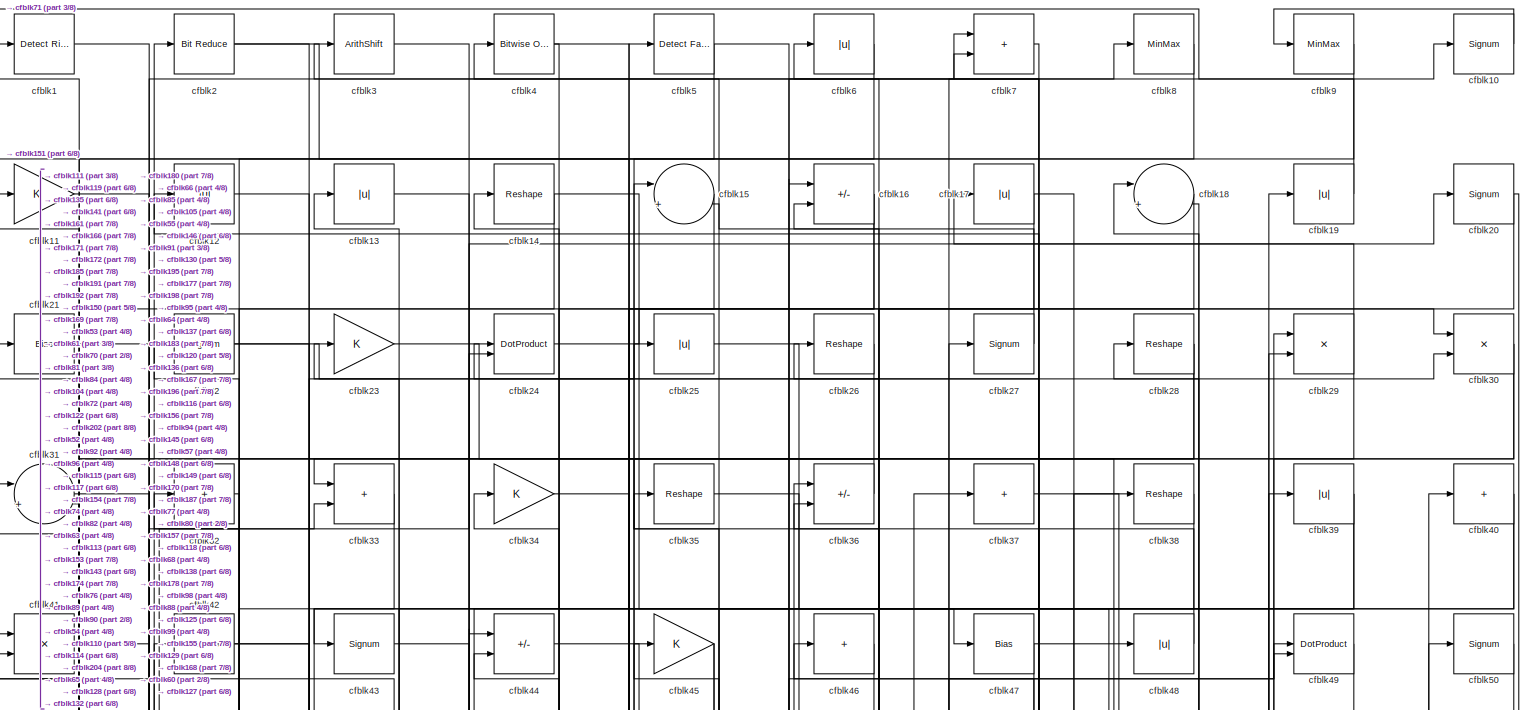
[diagram: root canvas - part 1/8, full width, top band]
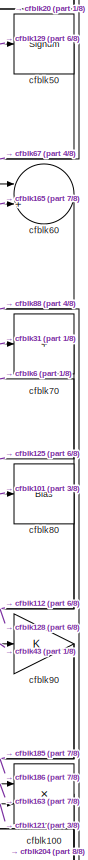
[diagram: root canvas - part 2/8, middle right region]
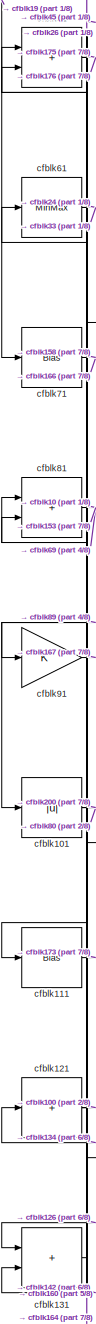
[diagram: root canvas - part 3/8, middle left region]
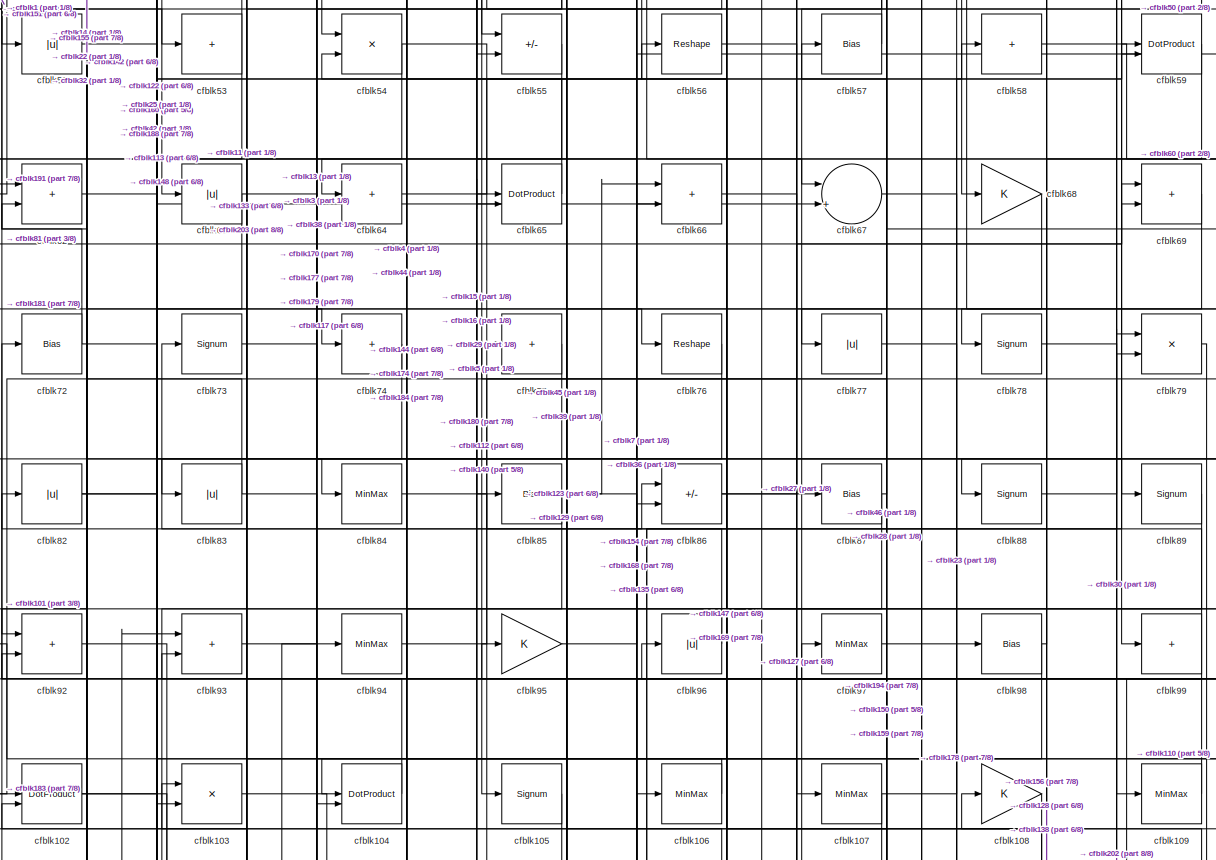
[diagram: root canvas - part 4/8, full width, middle band]
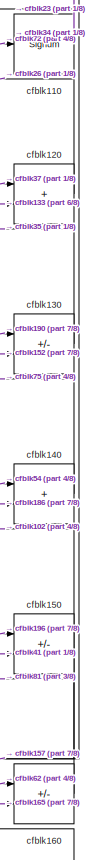
[diagram: root canvas - part 5/8, middle right region]
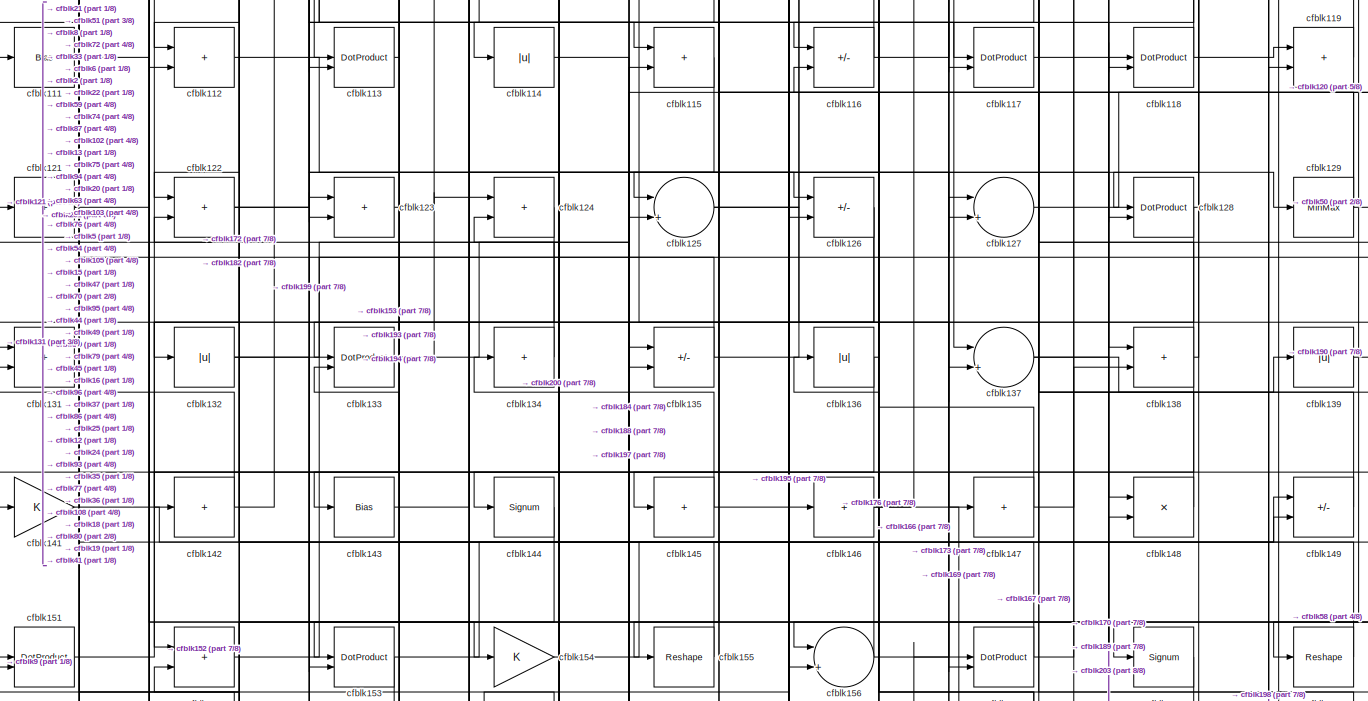
[diagram: root canvas - part 6/8, full width, middle band]
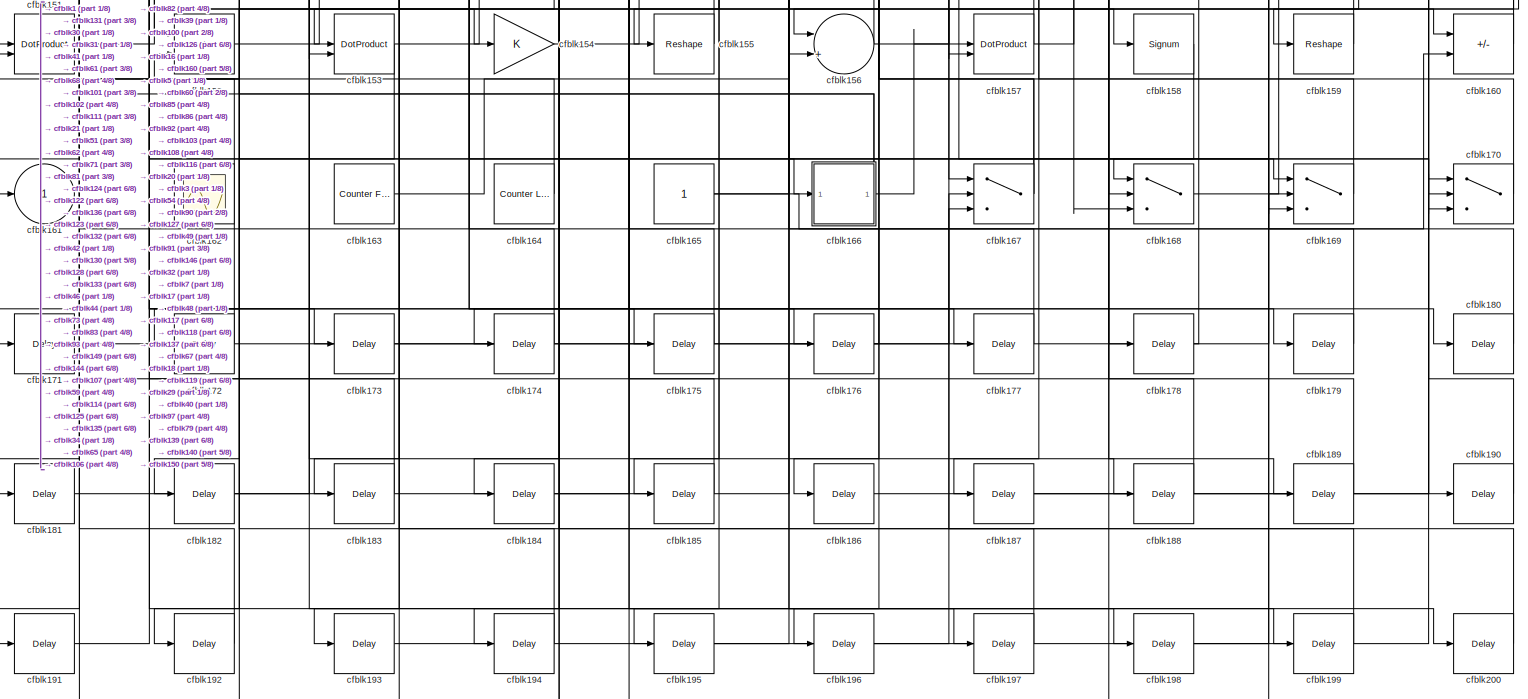
[diagram: root canvas - part 7/8, full width, bottom band]
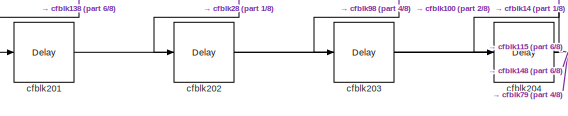
[diagram: root canvas - part 8/8, bottom left region]
MODEL slx_e0bf847c7317
KIND model
CONFIG AbsTol = auto
CONFIG EnableMultiTasking = off
CONFIG FixedStep = auto
CONFIG MaxStep = auto
CONFIG MinStep = auto
CONFIG RelTol = 1e-3
CONFIG SampleTimeConstraint = Unconstrained
CONFIG SolverName = VariableStepAuto
CONFIG StartTime = 0.0
CONFIG StopTime = 10.0
BLOCK [Reference] cfblk1  REF=hdlsllib/Logic and Bit
Operations/Detect Rise
Nonnegative
  SourceBlock = hdlsllib/Logic and Bit\nOperations/Detect Rise\nNonnegative
  SourceType = Detect Rise Nonnegative
BLOCK [Signum] cfblk10
BLOCK [Product] cfblk100
  Inputs = */
  RndMeth = Zero
  SaturateOnIntegerOverflow = on
BLOCK [Abs] cfblk101
  SaturateOnIntegerOverflow = off
BLOCK [DotProduct] cfblk102
  OutDataTypeStr = Inherit: Inherit via internal rule
BLOCK [Product] cfblk103
  Inputs = */
  RndMeth = Zero
  SaturateOnIntegerOverflow = on
BLOCK [DotProduct] cfblk104
  OutDataTypeStr = Inherit: Inherit via internal rule
BLOCK [Signum] cfblk105
BLOCK [MinMax] cfblk106
BLOCK [MinMax] cfblk107
BLOCK [Gain] cfblk108
BLOCK [MinMax] cfblk109
BLOCK [Gain] cfblk11
BLOCK [Signum] cfblk110
BLOCK [Bias] cfblk111
  Bias = 0.0
  SaturateOnIntegerOverflow = off
BLOCK [Sum] cfblk112
  IconShape = rectangular
BLOCK [DotProduct] cfblk113
  OutDataTypeStr = Inherit: Inherit via internal rule
BLOCK [Abs] cfblk114
  SaturateOnIntegerOverflow = off
BLOCK [Sum] cfblk115
  IconShape = rectangular
BLOCK [Sum] cfblk116
  IconShape = rectangular
  Inputs = +-
BLOCK [DotProduct] cfblk117
  OutDataTypeStr = Inherit: Inherit via internal rule
BLOCK [DotProduct] cfblk118
  OutDataTypeStr = Inherit: Inherit via internal rule
BLOCK [Sum] cfblk119
  IconShape = rectangular
BLOCK [Abs] cfblk12
  SaturateOnIntegerOverflow = off
BLOCK [Sum] cfblk120
  IconShape = rectangular
BLOCK [Sum] cfblk121
  IconShape = rectangular
  Inputs = +
BLOCK [Sum] cfblk122
  IconShape = rectangular
BLOCK [Sum] cfblk123
  IconShape = rectangular
BLOCK [Sum] cfblk124
  IconShape = rectangular
BLOCK [Sum] cfblk125
  Inputs = |++
BLOCK [Sum] cfblk126
  IconShape = rectangular
  Inputs = +-
BLOCK [Sum] cfblk127
  Inputs = |++
BLOCK [DotProduct] cfblk128
  OutDataTypeStr = Inherit: Inherit via internal rule
BLOCK [MinMax] cfblk129
BLOCK [Abs] cfblk13
  SaturateOnIntegerOverflow = off
BLOCK [Sum] cfblk130
  IconShape = rectangular
  Inputs = +-
BLOCK [Sum] cfblk131
  IconShape = rectangular
BLOCK [Abs] cfblk132
  SaturateOnIntegerOverflow = off
BLOCK [DotProduct] cfblk133
  OutDataTypeStr = Inherit: Inherit via internal rule
BLOCK [Sum] cfblk134
  IconShape = rectangular
  Inputs = +
BLOCK [Sum] cfblk135
  IconShape = rectangular
  Inputs = +-
BLOCK [Abs] cfblk136
  SaturateOnIntegerOverflow = off
BLOCK [Sum] cfblk137
  Inputs = |++
BLOCK [Sum] cfblk138
  IconShape = rectangular
BLOCK [Abs] cfblk139
  SaturateOnIntegerOverflow = off
BLOCK [Reshape] cfblk14
BLOCK [Sum] cfblk140
  IconShape = rectangular
BLOCK [Gain] cfblk141
BLOCK [Sum] cfblk142
  IconShape = rectangular
  Inputs = +
BLOCK [Bias] cfblk143
  Bias = 0.0
  SaturateOnIntegerOverflow = off
BLOCK [Signum] cfblk144
BLOCK [Sum] cfblk145
  IconShape = rectangular
  Inputs = +
BLOCK [Sum] cfblk146
  IconShape = rectangular
  Inputs = +
BLOCK [Sum] cfblk147
  IconShape = rectangular
  Inputs = +
BLOCK [Product] cfblk148
  Inputs = */
  RndMeth = Zero
  SaturateOnIntegerOverflow = on
BLOCK [Sum] cfblk149
  IconShape = rectangular
  Inputs = +-
BLOCK [Sum] cfblk15
  Inputs = |++
BLOCK [Sum] cfblk150
  IconShape = rectangular
  Inputs = +-
BLOCK [DotProduct] cfblk151
  OutDataTypeStr = Inherit: Inherit via internal rule
BLOCK [Sum] cfblk152
  IconShape = rectangular
BLOCK [DotProduct] cfblk153
  OutDataTypeStr = Inherit: Inherit via internal rule
BLOCK [Gain] cfblk154
BLOCK [Reshape] cfblk155
BLOCK [Sum] cfblk156
  Inputs = |++
BLOCK [DotProduct] cfblk157
  OutDataTypeStr = Inherit: Inherit via internal rule
BLOCK [Signum] cfblk158
BLOCK [Reshape] cfblk159
BLOCK [Sum] cfblk16
  IconShape = rectangular
  Inputs = +-
BLOCK [Sum] cfblk160
  IconShape = rectangular
  Inputs = +-
BLOCK [Outport] cfblk161
  VectorParamsAs1DForOutWhenUnconnected = off
BLOCK [Scope] cfblk162
  Floating = on
  NumInputPorts = 1
  ScopeSpecificationString = Simulink.scopes.TimeScopeBlockCfg('CurrentConfiguration', extmgr.ConfigurationSet(extmgr.Configuration('Core','General UI',true,'FigureColor',[0.156862745098039 0.156862745098039 0.156862745098039]),extmgr.Configuration('Core','Source UI',true),extmgr.Configuration('Sources','WiredSimulink',true,'DataLoggingVariableName','ScopeData1','DataLoggingSaveFormat','StructureWithTime','DataLoggingLimitDat...<+2713ch>
BLOCK [Reference] cfblk163  REF=hdlsllib/Sources/Counter
Free-Running
  SourceBlock = hdlsllib/Sources/Counter\nFree-Running
  SourceType = Counter Free-Running
BLOCK [Reference] cfblk164  REF=hdlsllib/Sources/Counter
Limited
  SourceBlock = hdlsllib/Sources/Counter\nLimited
  SourceType = Counter Limited
BLOCK [Constant] cfblk165
  SampleTime = -1
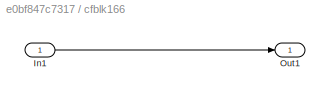
BLOCK [SubSystem] cfblk166
  LibrarySourceBlock = hdlsllib/Ports &\nSubsystems/Subsystem
BLOCK [Inport] cfblk166/In1
BLOCK [Outport] cfblk166/Out1
BLOCK [Switch] cfblk167
  InputSameDT = off
  SaturateOnIntegerOverflow = off
BLOCK [Switch] cfblk168
  InputSameDT = off
  SaturateOnIntegerOverflow = off
BLOCK [Switch] cfblk169
  InputSameDT = off
  SaturateOnIntegerOverflow = off
BLOCK [Abs] cfblk17
  SaturateOnIntegerOverflow = off
BLOCK [Switch] cfblk170
  InputSameDT = off
  SaturateOnIntegerOverflow = off
BLOCK [Delay] cfblk171
  InputPortMap = u0
  SampleTime = 1
BLOCK [Delay] cfblk172
  InputPortMap = u0
  SampleTime = 1
BLOCK [Delay] cfblk173
  InputPortMap = u0
  SampleTime = 1
BLOCK [Delay] cfblk174
  InputPortMap = u0
  SampleTime = 1
BLOCK [Delay] cfblk175
  InputPortMap = u0
  SampleTime = 1
BLOCK [Delay] cfblk176
  InputPortMap = u0
  SampleTime = 1
BLOCK [Delay] cfblk177
  InputPortMap = u0
  SampleTime = 1
BLOCK [Delay] cfblk178
  InputPortMap = u0
  SampleTime = 1
BLOCK [Delay] cfblk179
  InputPortMap = u0
  SampleTime = 1
BLOCK [Sum] cfblk18
  Inputs = |++
BLOCK [Delay] cfblk180
  InputPortMap = u0
  SampleTime = 1
BLOCK [Delay] cfblk181
  InputPortMap = u0
  SampleTime = 1
BLOCK [Delay] cfblk182
  InputPortMap = u0
  SampleTime = 1
BLOCK [Delay] cfblk183
  InputPortMap = u0
  SampleTime = 1
BLOCK [Delay] cfblk184
  InputPortMap = u0
  SampleTime = 1
BLOCK [Delay] cfblk185
  InputPortMap = u0
  SampleTime = 1
BLOCK [Delay] cfblk186
  InputPortMap = u0
  SampleTime = 1
BLOCK [Delay] cfblk187
  InputPortMap = u0
  SampleTime = 1
BLOCK [Delay] cfblk188
  InputPortMap = u0
  SampleTime = 1
BLOCK [Delay] cfblk189
  InputPortMap = u0
  SampleTime = 1
BLOCK [Abs] cfblk19
  SaturateOnIntegerOverflow = off
BLOCK [Delay] cfblk190
  InputPortMap = u0
  SampleTime = 1
BLOCK [Delay] cfblk191
  InputPortMap = u0
  SampleTime = 1
BLOCK [Delay] cfblk192
  InputPortMap = u0
  SampleTime = 1
BLOCK [Delay] cfblk193
  InputPortMap = u0
  SampleTime = 1
BLOCK [Delay] cfblk194
  InputPortMap = u0
  SampleTime = 1
BLOCK [Delay] cfblk195
  InputPortMap = u0
  SampleTime = 1
BLOCK [Delay] cfblk196
  InputPortMap = u0
  SampleTime = 1
BLOCK [Delay] cfblk197
  InputPortMap = u0
  SampleTime = 1
BLOCK [Delay] cfblk198
  InputPortMap = u0
  SampleTime = 1
BLOCK [Delay] cfblk199
  InputPortMap = u0
  SampleTime = 1
BLOCK [Reference] cfblk2  REF=hdlsllib/Logic and Bit
Operations/Bit Reduce
  SourceBlock = hdlsllib/Logic and Bit\nOperations/Bit Reduce
  SourceType = Bit Reduce
BLOCK [Signum] cfblk20
BLOCK [Delay] cfblk200
  InputPortMap = u0
  SampleTime = 1
BLOCK [Delay] cfblk201
  InputPortMap = u0
  SampleTime = 1
BLOCK [Delay] cfblk202
  InputPortMap = u0
  SampleTime = 1
BLOCK [Delay] cfblk203
  InputPortMap = u0
  SampleTime = 1
BLOCK [Delay] cfblk204
  InputPortMap = u0
  SampleTime = 1
BLOCK [Bias] cfblk21
  Bias = 0.0
  SaturateOnIntegerOverflow = off
BLOCK [Signum] cfblk22
BLOCK [Gain] cfblk23
BLOCK [DotProduct] cfblk24
  OutDataTypeStr = Inherit: Inherit via internal rule
BLOCK [Abs] cfblk25
  SaturateOnIntegerOverflow = off
BLOCK [Reshape] cfblk26
BLOCK [Signum] cfblk27
BLOCK [Reshape] cfblk28
BLOCK [Product] cfblk29
  Inputs = */
  RndMeth = Zero
  SaturateOnIntegerOverflow = on
BLOCK [ArithShift] cfblk3
  BitShiftNumber = 8
  InputPortMap = u0
BLOCK [Product] cfblk30
  Inputs = */
  RndMeth = Zero
  SaturateOnIntegerOverflow = on
BLOCK [Sum] cfblk31
  Inputs = |++
BLOCK [Sum] cfblk32
  IconShape = rectangular
  Inputs = +
BLOCK [Sum] cfblk33
  IconShape = rectangular
BLOCK [Gain] cfblk34
BLOCK [Reshape] cfblk35
BLOCK [Sum] cfblk36
  IconShape = rectangular
  Inputs = +-
BLOCK [Sum] cfblk37
  IconShape = rectangular
  Inputs = +
BLOCK [Reshape] cfblk38
BLOCK [Abs] cfblk39
  SaturateOnIntegerOverflow = off
BLOCK [Reference] cfblk4  REF=simulink/Logic and Bit
Operations/Bitwise
Operator
  LibrarySourceBlock = hdlsllib/Logic and Bit\nOperations/Bitwise\nOperator
  SourceBlock = simulink/Logic and Bit\nOperations/Bitwise\nOperator
  SourceType = Bitwise Operator
BLOCK [Sum] cfblk40
  IconShape = rectangular
  Inputs = +
BLOCK [Product] cfblk41
  Inputs = */
  RndMeth = Zero
  SaturateOnIntegerOverflow = on
BLOCK [MinMax] cfblk42
BLOCK [Signum] cfblk43
BLOCK [Sum] cfblk44
  IconShape = rectangular
  Inputs = +-
BLOCK [Gain] cfblk45
BLOCK [Sum] cfblk46
  IconShape = rectangular
  Inputs = +
BLOCK [Bias] cfblk47
  Bias = 0.0
  SaturateOnIntegerOverflow = off
BLOCK [Abs] cfblk48
  SaturateOnIntegerOverflow = off
BLOCK [DotProduct] cfblk49
  OutDataTypeStr = Inherit: Inherit via internal rule
BLOCK [Reference] cfblk5  REF=hdlsllib/Logic and Bit
Operations/Detect Fall
Negative
  SourceBlock = hdlsllib/Logic and Bit\nOperations/Detect Fall\nNegative
  SourceType = Detect Fall Negative
BLOCK [Signum] cfblk50
BLOCK [Sum] cfblk51
  IconShape = rectangular
BLOCK [Abs] cfblk52
  SaturateOnIntegerOverflow = off
BLOCK [Sum] cfblk53
  IconShape = rectangular
  Inputs = +
BLOCK [Product] cfblk54
  Inputs = */
  RndMeth = Zero
  SaturateOnIntegerOverflow = on
BLOCK [Sum] cfblk55
  IconShape = rectangular
  Inputs = +-
BLOCK [Reshape] cfblk56
BLOCK [Bias] cfblk57
  Bias = 0.0
  SaturateOnIntegerOverflow = off
BLOCK [Sum] cfblk58
  IconShape = rectangular
  Inputs = +
BLOCK [DotProduct] cfblk59
  OutDataTypeStr = Inherit: Inherit via internal rule
BLOCK [Abs] cfblk6
  SaturateOnIntegerOverflow = off
BLOCK [Sum] cfblk60
  Inputs = |++
BLOCK [MinMax] cfblk61
BLOCK [Sum] cfblk62
  IconShape = rectangular
BLOCK [Abs] cfblk63
  SaturateOnIntegerOverflow = off
BLOCK [Sum] cfblk64
  IconShape = rectangular
  Inputs = +
BLOCK [DotProduct] cfblk65
  OutDataTypeStr = Inherit: Inherit via internal rule
BLOCK [Sum] cfblk66
  IconShape = rectangular
BLOCK [Sum] cfblk67
  Inputs = |++
BLOCK [Gain] cfblk68
BLOCK [Sum] cfblk69
  IconShape = rectangular
BLOCK [Sum] cfblk7
  IconShape = rectangular
BLOCK [Sum] cfblk70
  IconShape = rectangular
  Inputs = +
BLOCK [Bias] cfblk71
  Bias = 0.0
  SaturateOnIntegerOverflow = off
BLOCK [Bias] cfblk72
  Bias = 0.0
  SaturateOnIntegerOverflow = off
BLOCK [Signum] cfblk73
BLOCK [Sum] cfblk74
  IconShape = rectangular
  Inputs = +
BLOCK [Sum] cfblk75
  IconShape = rectangular
  Inputs = +
BLOCK [Reshape] cfblk76
BLOCK [Abs] cfblk77
  SaturateOnIntegerOverflow = off
BLOCK [Signum] cfblk78
BLOCK [Product] cfblk79
  Inputs = */
  RndMeth = Zero
  SaturateOnIntegerOverflow = on
BLOCK [MinMax] cfblk8
BLOCK [Bias] cfblk80
  Bias = 0.0
  SaturateOnIntegerOverflow = off
BLOCK [Sum] cfblk81
  IconShape = rectangular
BLOCK [Abs] cfblk82
  SaturateOnIntegerOverflow = off
BLOCK [Abs] cfblk83
  SaturateOnIntegerOverflow = off
BLOCK [MinMax] cfblk84
BLOCK [Bias] cfblk85
  Bias = 0.0
  SaturateOnIntegerOverflow = off
BLOCK [Sum] cfblk86
  IconShape = rectangular
  Inputs = +-
BLOCK [Bias] cfblk87
  Bias = 0.0
  SaturateOnIntegerOverflow = off
BLOCK [Signum] cfblk88
BLOCK [Signum] cfblk89
BLOCK [MinMax] cfblk9
BLOCK [Gain] cfblk90
BLOCK [Gain] cfblk91
BLOCK [Sum] cfblk92
  IconShape = rectangular
BLOCK [Sum] cfblk93
  IconShape = rectangular
BLOCK [MinMax] cfblk94
BLOCK [Gain] cfblk95
BLOCK [Abs] cfblk96
  SaturateOnIntegerOverflow = off
BLOCK [MinMax] cfblk97
BLOCK [Bias] cfblk98
  Bias = 0.0
  SaturateOnIntegerOverflow = off
BLOCK [Sum] cfblk99
  IconShape = rectangular
  Inputs = +
LINE cfblk100:1 -> cfblk204:1
NET cfblk101:1 -> cfblk200:1, cfblk80:1
NET cfblk102:1 -> cfblk148:1, cfblk58:1
LINE cfblk103:1 -> cfblk117:1
LINE cfblk104:1 -> cfblk2:1
LINE cfblk105:1 -> cfblk123:2
LINE cfblk106:1 -> cfblk104:1
NET cfblk107:1 -> cfblk194:1, cfblk59:2
LINE cfblk108:1 -> cfblk156:1
LINE cfblk109:1 -> cfblk56:1
LINE cfblk10:1 -> cfblk9:1
NET cfblk110:1 -> cfblk23:1, cfblk34:1
LINE cfblk111:1 -> cfblk173:1
LINE cfblk112:1 -> cfblk137:2
LINE cfblk113:1 -> cfblk13:1
LINE cfblk114:1 -> cfblk197:1
LINE cfblk115:1 -> cfblk135:2
NET cfblk116:1 -> cfblk45:1, cfblk8:1
LINE cfblk117:1 -> cfblk170:3
NET cfblk118:1 -> cfblk119:1, cfblk36:2
LINE cfblk119:1 -> cfblk41:1
LINE cfblk11:1 -> cfblk84:1
LINE cfblk120:1 -> cfblk26:1
NET cfblk121:1 -> cfblk100:2, cfblk81:2
NET cfblk122:1 -> cfblk126:1, cfblk59:1
LINE cfblk123:1 -> cfblk124:1
LINE cfblk124:1 -> cfblk152:1
NET cfblk125:1 -> cfblk147:1, cfblk29:1
NET cfblk126:1 -> cfblk131:1, cfblk143:1
LINE cfblk127:1 -> cfblk19:1
NET cfblk128:1 -> cfblk108:1, cfblk193:1
NET cfblk129:1 -> cfblk15:2, cfblk50:1, cfblk95:1
LINE cfblk12:1 -> cfblk115:1
LINE cfblk130:1 -> cfblk35:1
LINE cfblk131:1 -> cfblk51:1
NET cfblk132:1 -> cfblk199:1, cfblk5:1
NET cfblk133:1 -> cfblk120:2, cfblk94:1
LINE cfblk134:1 -> cfblk121:1
NET cfblk135:1 -> cfblk21:1, cfblk79:1
NET cfblk136:1 -> cfblk16:2, cfblk172:1
NET cfblk137:1 -> cfblk139:1, cfblk189:1
NET cfblk138:1 -> cfblk18:1, cfblk201:1, cfblk93:2
LINE cfblk139:1 -> cfblk190:1
LINE cfblk13:1 -> cfblk76:1
LINE cfblk140:1 -> cfblk75:1
LINE cfblk141:1 -> cfblk149:2
NET cfblk142:1 -> cfblk51:2, cfblk93:1
LINE cfblk143:1 -> cfblk20:1
LINE cfblk144:1 -> cfblk182:1
NET cfblk145:1 -> cfblk134:1, cfblk49:1
NET cfblk146:1 -> cfblk169:1, cfblk37:1
NET cfblk147:1 -> cfblk138:2, cfblk96:1
LINE cfblk148:1 -> cfblk12:1
LINE cfblk149:1 -> cfblk24:1
NET cfblk14:1 -> cfblk47:1, cfblk52:1
NET cfblk150:1 -> cfblk102:2, cfblk157:2
LINE cfblk151:1 -> cfblk72:1
LINE cfblk152:1 -> cfblk130:2
NET cfblk153:1 -> cfblk149:1, cfblk192:1
LINE cfblk154:1 -> cfblk106:1
LINE cfblk155:1 -> cfblk82:1
NET cfblk156:1 -> cfblk103:1, cfblk49:2
NET cfblk157:1 -> cfblk32:1, cfblk48:1
LINE cfblk158:1 -> cfblk168:1
LINE cfblk159:1 -> cfblk97:1
LINE cfblk15:1 -> cfblk55:2
LINE cfblk160:1 -> cfblk81:1
LINE cfblk163:1 -> cfblk100:1
LINE cfblk164:1 -> cfblk61:1
NET cfblk165:1 -> cfblk160:2, cfblk60:2
LINE cfblk166/In1:1 -> cfblk166/Out1:1
NET cfblk166:1 -> cfblk122:2, cfblk157:1, cfblk31:1
NET cfblk167:1 -> cfblk136:1, cfblk3:1
LINE cfblk168:1 -> cfblk40:1
LINE cfblk169:1 -> cfblk54:2
NET cfblk16:1 -> cfblk114:1, cfblk65:2
LINE cfblk170:1 -> cfblk7:1
LINE cfblk171:1 -> cfblk29:2
LINE cfblk172:1 -> cfblk41:2
LINE cfblk173:1 -> cfblk127:1
LINE cfblk174:1 -> cfblk44:1
LINE cfblk175:1 -> cfblk131:2
LINE cfblk176:1 -> cfblk116:2
LINE cfblk177:1 -> cfblk16:1
LINE cfblk178:1 -> cfblk18:2
LINE cfblk179:1 -> cfblk169:2
NET cfblk17:1 -> cfblk161:1, cfblk168:3
LINE cfblk180:1 -> cfblk65:1
LINE cfblk181:1 -> cfblk86:2
LINE cfblk182:1 -> cfblk123:1
LINE cfblk183:1 -> cfblk102:1
LINE cfblk184:1 -> cfblk125:2
LINE cfblk185:1 -> cfblk1:1
LINE cfblk186:1 -> cfblk140:2
LINE cfblk187:1 -> cfblk170:1
LINE cfblk188:1 -> cfblk135:1
LINE cfblk189:1 -> cfblk118:1
LINE cfblk18:1 -> cfblk116:1
LINE cfblk190:1 -> cfblk130:1
LINE cfblk191:1 -> cfblk62:1
LINE cfblk192:1 -> cfblk31:2
LINE cfblk193:1 -> cfblk167:3
LINE cfblk194:1 -> cfblk133:2
LINE cfblk195:1 -> cfblk126:2
LINE cfblk196:1 -> cfblk150:1
LINE cfblk197:1 -> cfblk152:2
LINE cfblk198:1 -> cfblk119:2
LINE cfblk199:1 -> cfblk167:2
LINE cfblk19:1 -> cfblk71:1
LINE cfblk1:1 -> cfblk53:1
LINE cfblk200:1 -> cfblk124:2
LINE cfblk201:1 -> cfblk115:2
LINE cfblk202:1 -> cfblk79:2
LINE cfblk203:1 -> cfblk148:2
LINE cfblk204:1 -> cfblk14:1
NET cfblk20:1 -> cfblk196:1, cfblk60:1
LINE cfblk21:1 -> cfblk169:3
NET cfblk22:1 -> cfblk117:2, cfblk30:2
LINE cfblk23:1 -> cfblk68:1
LINE cfblk24:1 -> cfblk30:1
LINE cfblk25:1 -> cfblk137:1
LINE cfblk26:1 -> cfblk111:1
LINE cfblk27:1 -> cfblk4:1
NET cfblk28:1 -> cfblk202:1, cfblk77:1
NET cfblk29:1 -> cfblk105:1, cfblk17:1
NET cfblk2:1 -> cfblk128:2, cfblk85:1
NET cfblk30:1 -> cfblk191:1, cfblk99:1
LINE cfblk31:1 -> cfblk70:1
LINE cfblk32:1 -> cfblk92:1
LINE cfblk33:1 -> cfblk122:1
LINE cfblk34:1 -> cfblk180:1
LINE cfblk35:1 -> cfblk118:2
LINE cfblk36:1 -> cfblk33:1
LINE cfblk37:1 -> cfblk120:1
LINE cfblk38:1 -> cfblk54:1
NET cfblk39:1 -> cfblk195:1, cfblk63:1
LINE cfblk3:1 -> cfblk89:1
NET cfblk40:1 -> cfblk153:1, cfblk43:1
NET cfblk41:1 -> cfblk150:2, cfblk171:1
NET cfblk42:1 -> cfblk154:1, cfblk74:1
LINE cfblk43:1 -> cfblk90:1
LINE cfblk44:1 -> cfblk146:1
NET cfblk45:1 -> cfblk104:2, cfblk91:1
LINE cfblk46:1 -> cfblk183:1
NET cfblk47:1 -> cfblk145:1, cfblk38:1
LINE cfblk48:1 -> cfblk15:1
LINE cfblk49:1 -> cfblk155:1
NET cfblk4:1 -> cfblk64:1, cfblk66:2
LINE cfblk50:1 -> cfblk67:1
NET cfblk51:1 -> cfblk175:1, cfblk176:1
LINE cfblk52:1 -> cfblk67:2
NET cfblk53:1 -> cfblk103:2, cfblk11:1
NET cfblk54:1 -> cfblk112:2, cfblk140:1
LINE cfblk55:1 -> cfblk83:1
LINE cfblk56:1 -> cfblk107:1
LINE cfblk57:1 -> cfblk46:1
LINE cfblk58:1 -> cfblk151:1
LINE cfblk59:1 -> cfblk174:1
NET cfblk5:1 -> cfblk198:1, cfblk55:1
LINE cfblk60:1 -> cfblk88:1
NET cfblk61:1 -> cfblk24:2, cfblk33:2
LINE cfblk62:1 -> cfblk160:1
NET cfblk63:1 -> cfblk129:1, cfblk142:1
LINE cfblk64:1 -> cfblk36:1
LINE cfblk65:1 -> cfblk44:2
LINE cfblk66:1 -> cfblk87:1
LINE cfblk67:1 -> cfblk178:1
LINE cfblk68:1 -> cfblk181:1
LINE cfblk69:1 -> cfblk78:1
LINE cfblk6:1 -> cfblk132:1
LINE cfblk70:1 -> cfblk125:1
NET cfblk71:1 -> cfblk158:1, cfblk166:1
NET cfblk72:1 -> cfblk110:1, cfblk42:1
LINE cfblk73:1 -> cfblk170:2
LINE cfblk74:1 -> cfblk113:2
LINE cfblk75:1 -> cfblk133:1
LINE cfblk76:1 -> cfblk144:1
LINE cfblk77:1 -> cfblk138:1
LINE cfblk78:1 -> cfblk109:1
LINE cfblk79:1 -> cfblk159:1
LINE cfblk7:1 -> cfblk187:1
NET cfblk80:1 -> cfblk112:1, cfblk128:1, cfblk6:1
NET cfblk81:1 -> cfblk10:1, cfblk153:2, cfblk69:2
NET cfblk82:1 -> cfblk188:1, cfblk25:1
NET cfblk83:1 -> cfblk179:1, cfblk62:2
LINE cfblk84:1 -> cfblk86:1
NET cfblk85:1 -> cfblk168:2, cfblk184:1, cfblk66:1
NET cfblk86:1 -> cfblk127:2, cfblk69:1
NET cfblk87:1 -> cfblk113:1, cfblk57:1
LINE cfblk88:1 -> cfblk39:1
LINE cfblk89:1 -> cfblk101:1
LINE cfblk8:1 -> cfblk141:1
NET cfblk90:1 -> cfblk185:1, cfblk186:1
LINE cfblk91:1 -> cfblk167:1
LINE cfblk92:1 -> cfblk156:2
LINE cfblk93:1 -> cfblk177:1
LINE cfblk94:1 -> cfblk27:1
LINE cfblk95:1 -> cfblk7:2
LINE cfblk96:1 -> cfblk22:1
LINE cfblk97:1 -> cfblk98:1
NET cfblk98:1 -> cfblk203:1, cfblk28:1
NET cfblk99:1 -> cfblk73:1, cfblk92:2
LINE cfblk9:1 -> cfblk151:2
note: NET lines group one-source signal fan-out (src -> all destinations, sorted); 1:1 wires keep LINE
